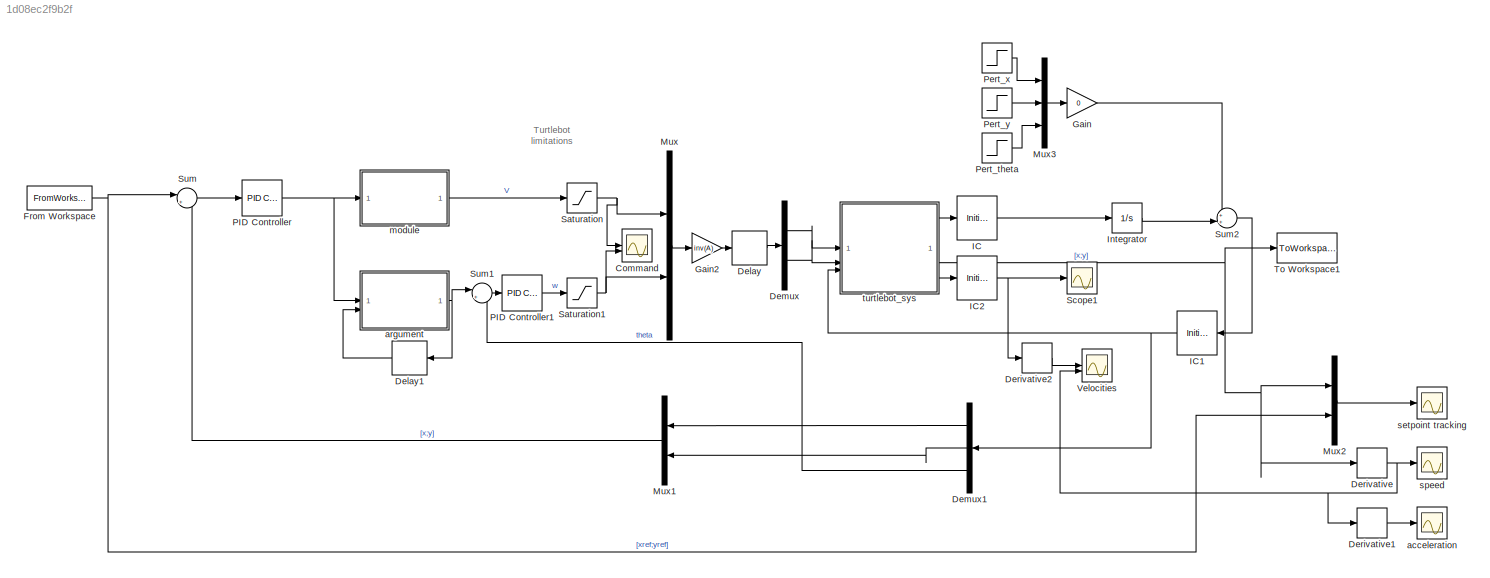
MODEL slx_1d08ec2f9b2f
KIND model
CONFIG AbsTol = auto
CONFIG EnableMultiTasking = off
CONFIG FixedStep = auto
CONFIG MaxStep = auto
CONFIG MinStep = auto
CONFIG RelTol = 1e-3
CONFIG SampleTimeConstraint = Unconstrained
CONFIG SolverName = VariableStepAuto
CONFIG StartTime = 0.0
CONFIG StopTime = 35
BLOCK [Scope] Command
  Floating = off
  NumInputPorts = 2
  ScopeSpecificationString = Simulink.scopes.TimeScopeBlockCfg('CurrentConfiguration', extmgr.ConfigurationSet(extmgr.Configuration('Core','General UI',true),extmgr.Configuration('Core','Source UI',true),extmgr.Configuration('Sources','WiredSimulink',true,'DataLoggingVariableName','ScopeData1'),extmgr.Configuration('Visuals','Time Domain',true,'SerializedDisplays',{struct('MinYLimReal','-0.53189','MaxYLimReal','1.80443','YLab...<+1847ch>
BLOCK [Delay] Delay
  DelayLength = 1
  InitialCondition = 0
  InputPortMap = u0
  SampleTime = Ts
BLOCK [Delay] Delay1
  DelayLength = 1
  InitialCondition = 0
  InputPortMap = u0
  NameLocation = top
  SampleTime = Ts
BLOCK [Demux] Demux
  Outputs = 2
BLOCK [Demux] Demux1
  NameLocation = top
  Outputs = 3
BLOCK [Derivative] Derivative
BLOCK [Derivative] Derivative1
BLOCK [Derivative] Derivative2
BLOCK [FromWorkspace] From Workspace
  VariableName = rsim
BLOCK [Gain] Gain
  Gain = 0
BLOCK [Gain] Gain2
  Gain = inv(A)
  Multiplication = Matrix(K*u) (u vector)
BLOCK [InitialCondition] IC
  Value = [0 0 0]
BLOCK [InitialCondition] IC1
  Value = x0
BLOCK [InitialCondition] IC2
  Value = pi/3
BLOCK [Integrator] Integrator
BLOCK [Mux] Mux
  DisplayOption = bar
  Inputs = 2
BLOCK [Mux] Mux1
  DisplayOption = bar
  Inputs = 2
  NameLocation = top
BLOCK [Mux] Mux2
  DisplayOption = bar
  Inputs = 2
BLOCK [Mux] Mux3
  DisplayOption = bar
  Inputs = 3
BLOCK [Reference] PID Controller  REF=slpidlib/PID Controller
  LibrarySourceBlock = simulink/Continuous/PID Controller
  SourceBlock = slpidlib/PID Controller
  SourceType = PID 1dof
BLOCK [Reference] PID Controller1  REF=slpidlib/PID Controller
  LibrarySourceBlock = simulink/Continuous/PID Controller
  SourceBlock = slpidlib/PID Controller
  SourceType = PID 1dof
BLOCK [Step] Pert_theta
  SampleTime = 0
  Time = 180
BLOCK [Step] Pert_x
  SampleTime = 0
  Time = 80
BLOCK [Step] Pert_y
  SampleTime = 0
  Time = 160
BLOCK [Saturate] Saturation
  LowerLimit = -0.22
  UpperLimit = 0.22
BLOCK [Saturate] Saturation1
  LowerLimit = -2.84
  UpperLimit = 2.84
BLOCK [Scope] Scope1
  Floating = off
  NumInputPorts = 1
  ScopeSpecificationString = Simulink.scopes.TimeScopeBlockCfg('CurrentConfiguration', extmgr.ConfigurationSet(extmgr.Configuration('Core','General UI',true),extmgr.Configuration('Core','Source UI',true),extmgr.Configuration('Sources','WiredSimulink',true,'DataLoggingVariableName','ScopeData1'),extmgr.Configuration('Visuals','Time Domain',true,'SerializedDisplays',{struct('MinYLimReal','-2.8167','MaxYLimReal','25.20824','YLab...<+1393ch>
BLOCK [Sum] Sum
  Inputs = |+-
BLOCK [Sum] Sum1
  Inputs = |+-
BLOCK [Sum] Sum2
  Inputs = ++|
BLOCK [ToWorkspace] To Workspace1
  FixptAsFi = on
  MaxDataPoints = inf
  SampleTime = -1
  SaveFormat = Structure With Time
  VariableName = ysim
BLOCK [Scope] Velocities
  Floating = off
  NumInputPorts = 2
  ScopeSpecificationString = Simulink.scopes.TimeScopeBlockCfg('CurrentConfiguration', extmgr.ConfigurationSet(extmgr.Configuration('Core','General UI',true),extmgr.Configuration('Core','Source UI',true),extmgr.Configuration('Sources','WiredSimulink',true,'DataLoggingVariableName','ScopeData1'),extmgr.Configuration('Visuals','Time Domain',true,'SerializedDisplays',{struct('MinYLimReal','-0.53189','MaxYLimReal','1.80443','YLab...<+1896ch>
BLOCK [Scope] acceleration
  Floating = off
  NumInputPorts = 1
  ScopeSpecificationString = Simulink.scopes.TimeScopeBlockCfg('CurrentConfiguration', extmgr.ConfigurationSet(extmgr.Configuration('Core','General UI',true),extmgr.Configuration('Core','Source UI',true),extmgr.Configuration('Sources','WiredSimulink',true,'DataLoggingVariableName','ScopeData2'),extmgr.Configuration('Visuals','Time Domain',true,'SerializedDisplays',{struct('MinYLimReal','-1055737.7138','MaxYLimReal','414407.65...<+1536ch>
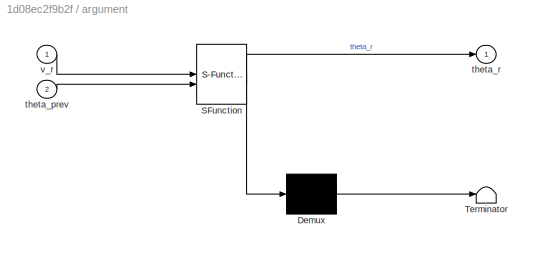
BLOCK [SubSystem] argument
  ErrorFcn = Stateflow.Translate.translate
  PermitHierarchicalResolution = ExplicitOnly
  SFBlockType = MATLAB Function
  TreatAsAtomicUnit = on
BLOCK [Demux] argument/ Demux 
  Outputs = 1
BLOCK [S-Function] argument/ SFunction 
  EnableBusSupport = on
  FunctionName = sf_sfun
  PortCounts = [2 2]
  SFcnIsStateOwnerBlock = off
  SFunctionDeploymentMode = off
  Tag = Stateflow S-Function 2
BLOCK [Terminator] argument/ Terminator 
BLOCK [Inport] argument/theta_prev
  Port = 2
BLOCK [Outport] argument/theta_r
  VectorParamsAs1DForOutWhenUnconnected = off
BLOCK [Inport] argument/v_r
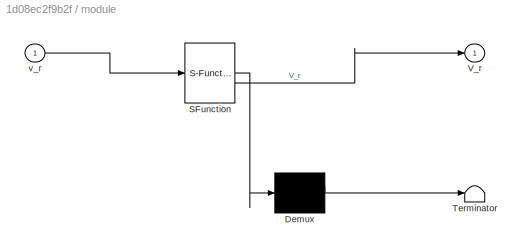
BLOCK [SubSystem] module
  ErrorFcn = Stateflow.Translate.translate
  PermitHierarchicalResolution = ExplicitOnly
  SFBlockType = MATLAB Function
  TreatAsAtomicUnit = on
BLOCK [Demux] module/ Demux 
  Outputs = 1
BLOCK [S-Function] module/ SFunction 
  EnableBusSupport = on
  FunctionName = sf_sfun
  PortCounts = [1 2]
  SFcnIsStateOwnerBlock = off
  SFunctionDeploymentMode = off
  Tag = Stateflow S-Function 1
BLOCK [Terminator] module/ Terminator 
BLOCK [Outport] module/V_r
  VectorParamsAs1DForOutWhenUnconnected = off
BLOCK [Inport] module/v_r
BLOCK [Scope] setpoint tracking
  Floating = off
  NumInputPorts = 1
  ScopeSpecificationString = Simulink.scopes.TimeScopeBlockCfg('CurrentConfiguration', extmgr.ConfigurationSet(extmgr.Configuration('Core','General UI',true),extmgr.Configuration('Core','Source UI',true),extmgr.Configuration('Sources','WiredSimulink',true,'DataLoggingVariableName','ScopeData2'),extmgr.Configuration('Visuals','Time Domain',true,'SerializedDisplays',{struct('MinYLimReal','-1.25001','MaxYLimReal','11.25','YLabel...<+1473ch>
BLOCK [Scope] speed
  Floating = off
  NumInputPorts = 1
  ScopeSpecificationString = Simulink.scopes.TimeScopeBlockCfg('CurrentConfiguration', extmgr.ConfigurationSet(extmgr.Configuration('Core','General UI',true),extmgr.Configuration('Core','Source UI',true),extmgr.Configuration('Sources','WiredSimulink',true,'DataLoggingVariableName','ScopeData1'),extmgr.Configuration('Visuals','Time Domain',true,'SerializedDisplays',{struct('MinYLimReal','-0.18939','MaxYLimReal','0.25946','YLab...<+1458ch>
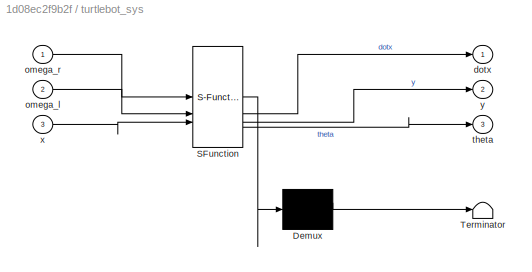
BLOCK [SubSystem] turtlebot_sys
  ErrorFcn = Stateflow.Translate.translate
  PermitHierarchicalResolution = ExplicitOnly
  SFBlockType = MATLAB Function
  TreatAsAtomicUnit = on
BLOCK [Demux] turtlebot_sys/ Demux 
  Outputs = 1
BLOCK [S-Function] turtlebot_sys/ SFunction 
  EnableBusSupport = on
  FunctionName = sf_sfun
  PortCounts = [3 4]
  SFcnIsStateOwnerBlock = off
  SFunctionDeploymentMode = off
  Tag = Stateflow S-Function 3
BLOCK [Terminator] turtlebot_sys/ Terminator 
BLOCK [Outport] turtlebot_sys/dotx
  VectorParamsAs1DForOutWhenUnconnected = off
BLOCK [Inport] turtlebot_sys/omega_l
  Port = 2
BLOCK [Inport] turtlebot_sys/omega_r
BLOCK [Outport] turtlebot_sys/theta
  Port = 3
BLOCK [Inport] turtlebot_sys/x
  Port = 3
BLOCK [Outport] turtlebot_sys/y
  Port = 2
ANNOTATION (root): Turtlebot limitations
LINE Delay1:1 -> argument:2
LINE Delay:1 -> Demux:1
LINE Demux1:1 -> Mux1:1
LINE Demux1:2 -> Mux1:2
LINE Demux1:3 -> Sum1:2
LINE Demux:1 -> turtlebot_sys:1
LINE Demux:2 -> turtlebot_sys:2
LINE Derivative1:1 -> acceleration:1
LINE Derivative2:1 -> Velocities:1
NET Derivative:1 -> Derivative1:1, Velocities:2, speed:1
NET From Workspace:1 -> Mux2:2, Sum:1
LINE Gain2:1 -> Delay:1
LINE Gain:1 -> Sum2:1
NET IC1:1 -> Demux1:1, turtlebot_sys:3
NET IC2:1 -> Derivative2:1, Scope1:1
LINE IC:1 -> Integrator:1
LINE Integrator:1 -> Sum2:2
LINE Mux1:1 -> Sum:2
LINE Mux2:1 -> setpoint tracking:1
LINE Mux3:1 -> Gain:1
LINE Mux:1 -> Gain2:1
LINE PID Controller1:1 -> Saturation1:1
NET PID Controller:1 -> argument:1, module:1
LINE Pert_theta:1 -> Mux3:3
LINE Pert_x:1 -> Mux3:1
LINE Pert_y:1 -> Mux3:2
NET Saturation1:1 -> Command:2, Mux:2
NET Saturation:1 -> Command:1, Mux:1
LINE Sum1:1 -> PID Controller1:1
LINE Sum2:1 -> IC1:1
LINE Sum:1 -> PID Controller:1
NET argument:1 -> Delay1:1, Sum1:1
LINE module:1 -> Saturation:1
LINE turtlebot_sys:1 -> IC:1
NET turtlebot_sys:2 -> Derivative:1, Mux2:1, To Workspace1:1
LINE turtlebot_sys:3 -> IC2:1
note: NET lines group one-source signal fan-out (src -> all destinations, sorted); 1:1 wires keep LINE
CHART module states=1 transitions=1
  STATE_LABEL 'eML_blk_kernel()'
  STATE_LABEL 'SCRIPT:\nfunction V_r  = fcn(v_r)\nV_r = sqrt(v_r(1)^2+v_r(2)^2);\n\n\n'
CHART argument states=1 transitions=1
  STATE_LABEL 'eML_blk_kernel()'
  STATE_LABEL 'SCRIPT:\nfunction theta_r  = fcn(v_r, theta_prev)\n\n%We use atan2() and not atan() because atan(x) -> [-pi/2; pi/2] and atan2 -> [0;2pi]\n%We work at 360° so we must use atan2\ntheta=wrapTo2Pi(atan2(v_r(2),v_r(1)));\n\n%Sometimes, there may be a jump between (2pi - delta) rad  and 0rad so the\n%robots thinks he has to turn back (2pi-delta) rad instead of just rotate\n%by delta rad. (delta being a tiny ang...<+239ch>'
CHART turtlebot_sys states=1 transitions=1
  STATE_LABEL 'eML_blk_kernel()'
  STATE_LABEL 'SCRIPT:\nfunction [dotx, y, theta]  = fcn(omega_r,omega_l, x)\ndotx=[(33e-3*(omega_r+omega_l)/2)*cos(x(3)); (33e-3*(omega_r+omega_l)/2)*sin(x(3)); 33e-3/160e-3*(omega_r-omega_l)];\ny= [x(1); x(2)];\ntheta = x(3);\n'
CHART  states=0 transitions=0
CHART  states=0 transitions=0
CHART  states=0 transitions=0
